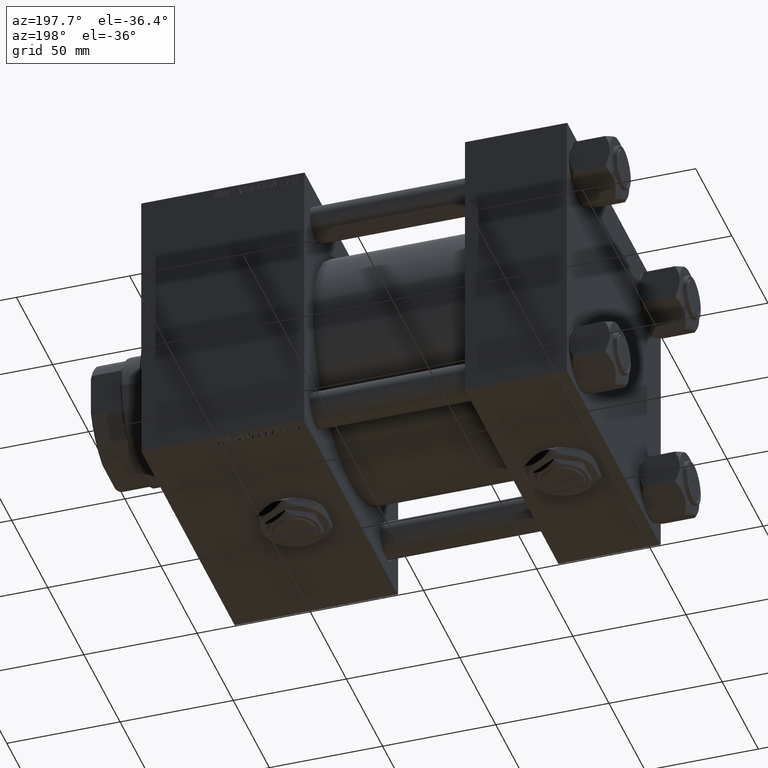
[diagram: clean part render]
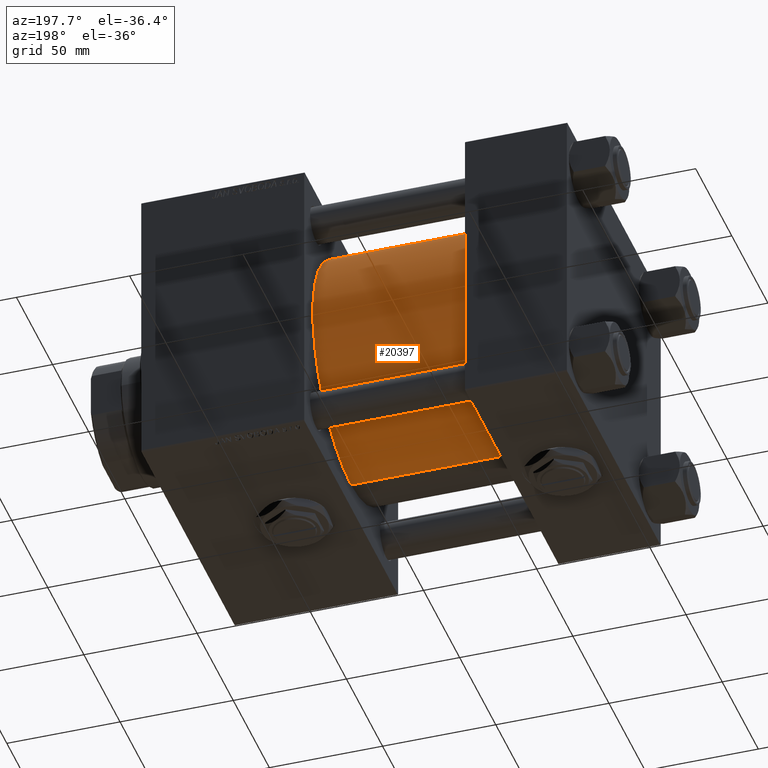
[diagram: same view with one face highlighted and labeled with its STEP entity id]
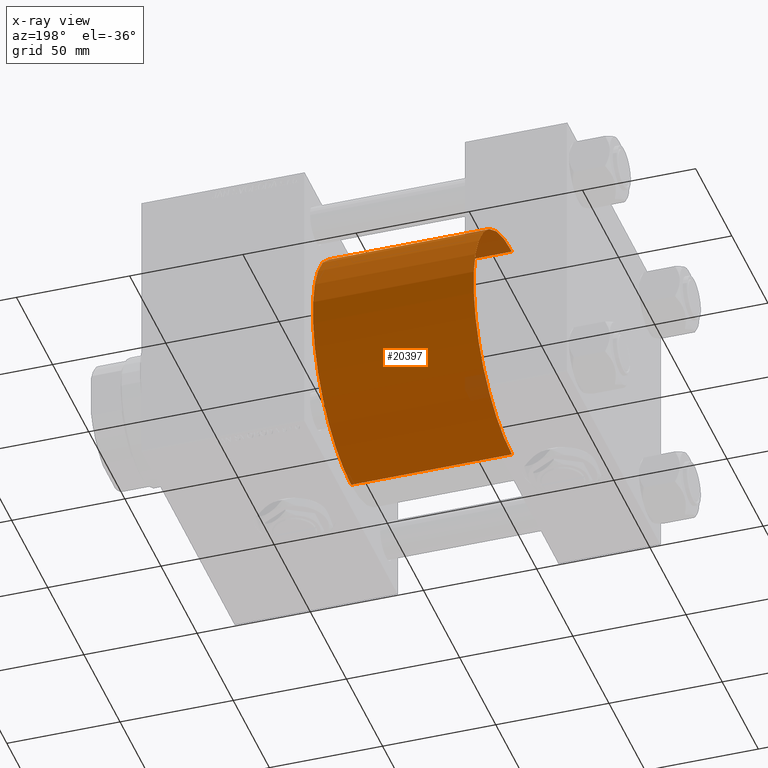
[diagram: x-ray of the same camera — body ghosted, the highlighted face saturated]
A machine part, auxiliary view. The second image highlights one B-rep face of the part: STEP entity #20397.
The next image is the same camera in x-ray: the body ghosted, the highlighted face saturated — about 3% of this face is hidden behind the body in this view.
In plain terms, the highlighted cylindrical surface (partial cylindrical patch) has radius 53 mm, axis along (-1, -0, -0).
Its self-contained STEP definition (entity closure, byte-faithful):
#3503 = LINE ( 'NONE', #47839, #51510 ) ;
#3881 = CARTESIAN_POINT ( 'NONE',  ( 115.9999999999999858, -2.602085213965210642E-15, 53.00000000000000711 ) ) ;
#5401 = VERTEX_POINT ( 'NONE', #7133 ) ;
#7133 = CARTESIAN_POINT ( 'NONE',  ( 45.00000000000000000, 3.888542821515762466E-15, -53.00000000000000711 ) ) ;
#8275 = VERTEX_POINT ( 'NONE', #50033 ) ;
#8302 = EDGE_CURVE ( 'NONE', #5401, #19732, #14425, .T. ) ;
#9381 = VECTOR ( 'NONE', #31573, 1000.000000000000000 ) ;
#10139 = AXIS2_PLACEMENT_3D ( 'NONE', #30001, #13470, #46291 ) ;
#10241 = EDGE_CURVE ( 'NONE', #8275, #5401, #20648, .T. ) ;
#10462 = EDGE_LOOP ( 'NONE', ( #26751, #12583, #32854, #37809 ) ) ;
#12149 = CARTESIAN_POINT ( 'NONE',  ( 115.9999999999999858, -2.602085213965210642E-15, 0.000000000000000000 ) ) ;
#12583 = ORIENTED_EDGE ( 'NONE', *, *, #10241, .T. ) ;
#12690 = DIRECTION ( 'NONE',  ( 1.000000000000000000, 0.000000000000000000, 0.000000000000000000 ) ) ;
#13337 = DIRECTION ( 'NONE',  ( 0.000000000000000000, 0.000000000000000000, 1.000000000000000000 ) ) ;
#13470 = DIRECTION ( 'NONE',  ( 1.000000000000000000, -0.000000000000000000, 0.000000000000000000 ) ) ;
#14425 = CIRCLE ( 'NONE', #10139, 53.00000000000000711 ) ;
#15027 = DIRECTION ( 'NONE',  ( -1.000000000000000000, -0.000000000000000000, -0.000000000000000000 ) ) ;
#19732 = VERTEX_POINT ( 'NONE', #29990 ) ;
#20397 = ADVANCED_FACE ( 'NONE', ( #33863 ), #25848, .T. ) ;
#20648 = LINE ( 'NONE', #36914, #9381 ) ;
#21791 = AXIS2_PLACEMENT_3D ( 'NONE', #12149, #12690, #48982 ) ;
#23439 = CIRCLE ( 'NONE', #21791, 53.00000000000000711 ) ;
#24334 = EDGE_CURVE ( 'NONE', #26488, #19732, #3503, .T. ) ;
#25848 = CYLINDRICAL_SURFACE ( 'NONE', #43689, 53.00000000000000711 ) ;
#26488 = VERTEX_POINT ( 'NONE', #3881 ) ;
#26751 = ORIENTED_EDGE ( 'NONE', *, *, #39214, .F. ) ;
#29990 = CARTESIAN_POINT ( 'NONE',  ( 45.00000000000000000, -2.602085213965210642E-15, 53.00000000000000711 ) ) ;
#30001 = CARTESIAN_POINT ( 'NONE',  ( 45.00000000000000000, -2.602085213965210642E-15, 0.000000000000000000 ) ) ;
#31573 = DIRECTION ( 'NONE',  ( -1.000000000000000000, -0.000000000000000000, -0.000000000000000000 ) ) ;
#32854 = ORIENTED_EDGE ( 'NONE', *, *, #8302, .T. ) ;
#33863 = FACE_OUTER_BOUND ( 'NONE', #10462, .T. ) ;
#36914 = CARTESIAN_POINT ( 'NONE',  ( 115.9999999999999858, 3.888542821515762466E-15, -53.00000000000000711 ) ) ;
#37809 = ORIENTED_EDGE ( 'NONE', *, *, #24334, .F. ) ;
#37870 = CARTESIAN_POINT ( 'NONE',  ( 115.9999999999999858, -2.602085213965210642E-15, 0.000000000000000000 ) ) ;
#39214 = EDGE_CURVE ( 'NONE', #8275, #26488, #23439, .T. ) ;
#43689 = AXIS2_PLACEMENT_3D ( 'NONE', #37870, #46154, #13337 ) ;
#46154 = DIRECTION ( 'NONE',  ( -1.000000000000000000, -0.000000000000000000, -0.000000000000000000 ) ) ;
#46291 = DIRECTION ( 'NONE',  ( 0.000000000000000000, 0.000000000000000000, 1.000000000000000000 ) ) ;
#47839 = CARTESIAN_POINT ( 'NONE',  ( 115.9999999999999858, -2.602085213965210642E-15, 53.00000000000000711 ) ) ;
#48982 = DIRECTION ( 'NONE',  ( 0.000000000000000000, 0.000000000000000000, -1.000000000000000000 ) ) ;
#50033 = CARTESIAN_POINT ( 'NONE',  ( 115.9999999999999858, 3.888542821515762466E-15, -53.00000000000000711 ) ) ;
#51510 = VECTOR ( 'NONE', #15027, 1000.000000000000000 ) ;